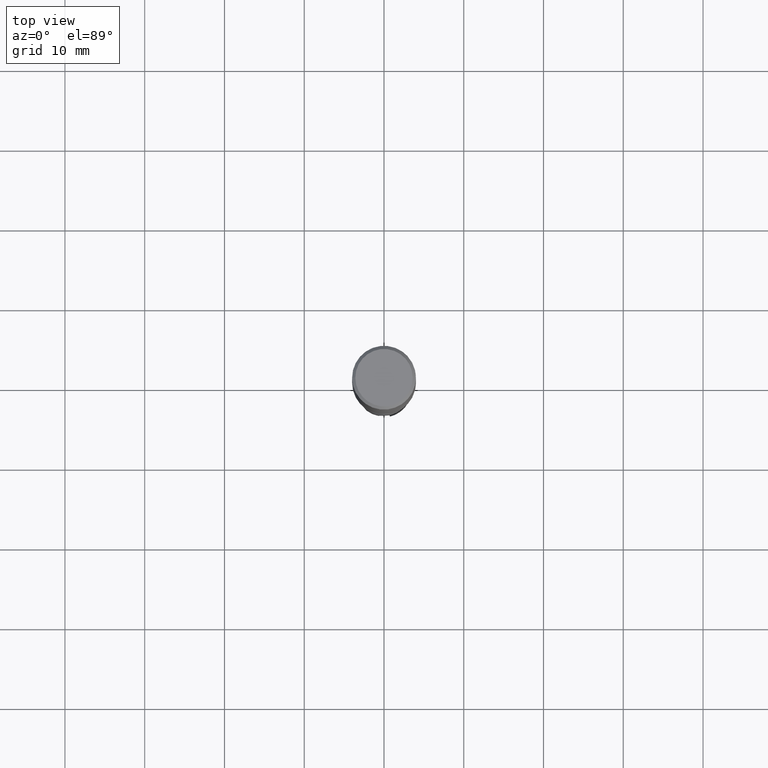
[diagram: clean part render]
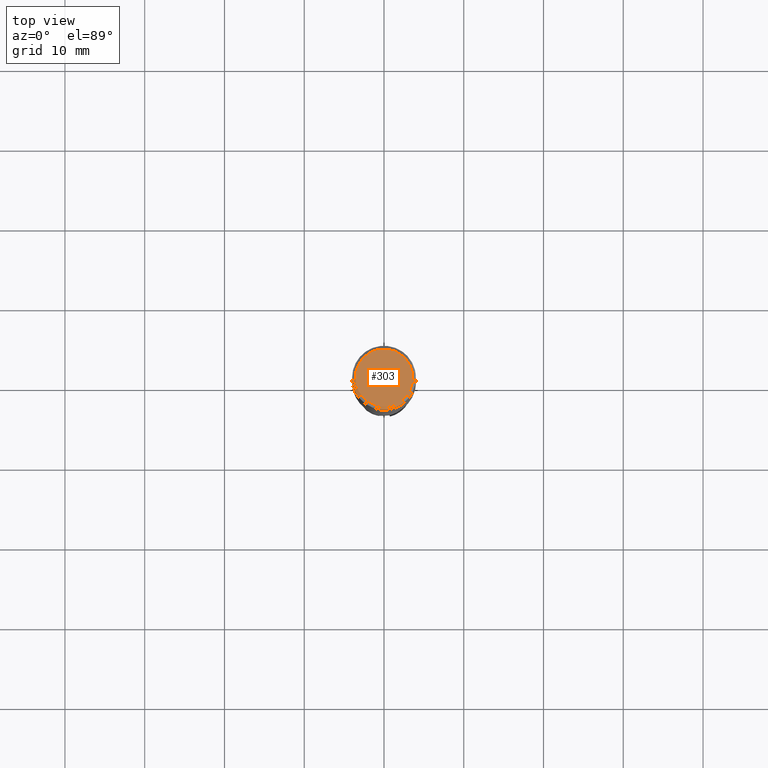
[diagram: same view with one face highlighted and labeled with its STEP entity id]
A machine part, top view. The second image highlights one B-rep face of the part: STEP entity #303.
In plain terms, the highlighted planar face has unit normal (-0, -0, 1).
Its self-contained STEP definition (entity closure, byte-faithful):
#263 = VERTEX_POINT('', #264);
#264 = CARTESIAN_POINT('', (-3.6, 2.20436423846524E-16, 0.));
#270 = EDGE_CURVE('', #263, #263, #271, .T.);
#271 = CIRCLE('', #272, 3.6);
#272 = AXIS2_PLACEMENT_3D('', #273, #274, #275);
#273 = CARTESIAN_POINT('', (0., 0., 0.));
#274 = DIRECTION('', (3.74939945665464E-33, 6.12323399573677E-17, -1.));
#275 = DIRECTION('', (-1., 6.12323399573677E-17, 0.));
#303 = ADVANCED_FACE('', (#304), #307, .T.);
#304 = FACE_OUTER_BOUND('', #305, .T.);
#305 = EDGE_LOOP('', (#306));
#306 = ORIENTED_EDGE('', *, *, #270, .F.);
#307 = PLANE('', #308);
#308 = AXIS2_PLACEMENT_3D('', #309, #310, #311);
#309 = CARTESIAN_POINT('', (5.60028570699746, -5.60028570699746, 1.07105323108645E-14));
#310 = DIRECTION('', (-1.97372982155583E-15, -6.12323399573676E-17, 1.));
#311 = DIRECTION('', (0., 1., 6.12323399573676E-17));